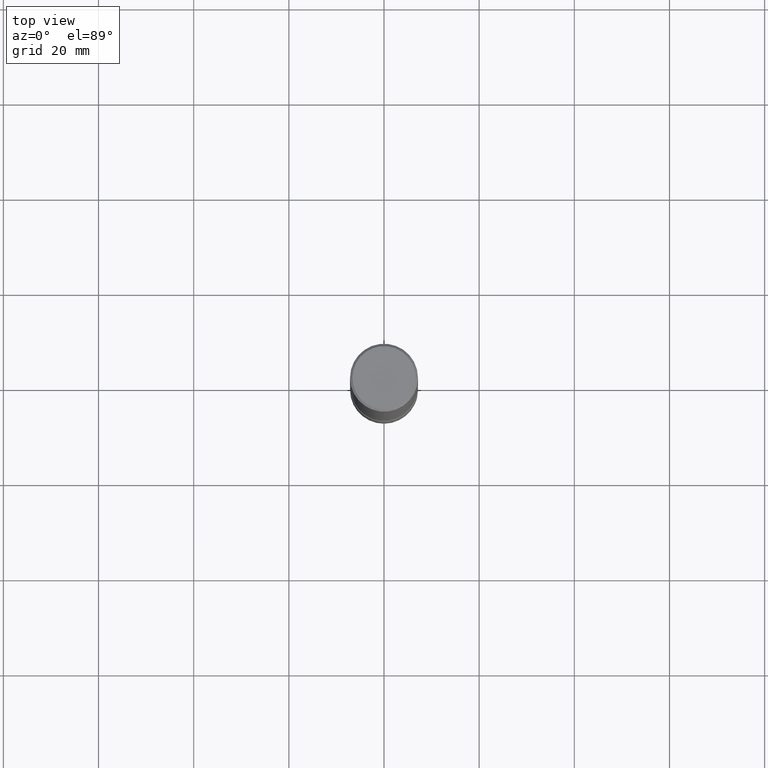
[diagram: clean part render]
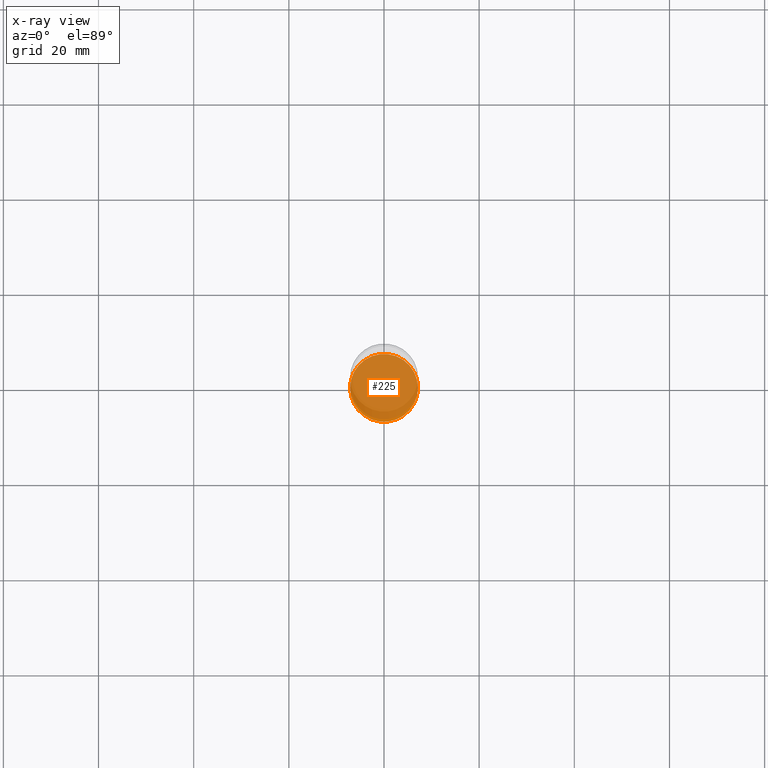
[diagram: x-ray — body ghosted, one internal face saturated and labeled with its STEP entity id]
A machine part, top view, then the same camera in x-ray: the body is ghosted and one INTERNAL B-rep face — a face not visible from any outside direction — is saturated and labeled: STEP entity #225.
In plain terms, the highlighted planar face has unit normal (0, -0, -1).
Its self-contained STEP definition (entity closure, byte-faithful):
#5 = EDGE_CURVE ( 'NONE', #310, #346, #274, .T. ) ;
#21 = AXIS2_PLACEMENT_3D ( 'NONE', #215, #528, #93 ) ;
#29 = CARTESIAN_POINT ( 'NONE',  ( 1.960466771760531918E-15, 0.2807499999999821250, -4.875000000000001776 ) ) ;
#34 = CARTESIAN_POINT ( 'NONE',  ( 1.192166043015254315E-28, -1.702097152686033664E-14, -4.875000000000000888 ) ) ;
#43 = CARTESIAN_POINT ( 'NONE',  ( 0.2807499999999991114, -1.898205379853449620E-14, -4.875000000000000888 ) ) ;
#93 = DIRECTION ( 'NONE',  ( -1.000000000000000000, 6.982962677686265133E-15, 0.000000000000000000 ) ) ;
#155 = DIRECTION ( 'NONE',  ( -1.000000000000000000, 6.982962677686265133E-15, 0.000000000000000000 ) ) ;
#175 = PLANE ( 'NONE',  #351 ) ;
#193 = DIRECTION ( 'NONE',  ( 2.445468806185136597E-29, -3.491481338843145583E-15, -1.000000000000000000 ) ) ;
#196 = AXIS2_PLACEMENT_3D ( 'NONE', #34, #193, #155 ) ;
#215 = CARTESIAN_POINT ( 'NONE',  ( 1.192166043015254315E-28, -1.702097152686033664E-14, -4.875000000000000888 ) ) ;
#225 = ADVANCED_FACE ( 'NONE', ( #494 ), #175, .T. ) ;
#271 = CARTESIAN_POINT ( 'NONE',  ( -0.2807499999999991114, -1.502425470764181182E-14, -4.875000000000000888 ) ) ;
#274 = CIRCLE ( 'NONE', #196, 0.2807499999999991114 ) ;
#283 = DIRECTION ( 'NONE',  ( 2.438088387897960049E-29, -3.491481338843145188E-15, -1.000000000000000000 ) ) ;
#310 = VERTEX_POINT ( 'NONE', #271 ) ;
#346 = VERTEX_POINT ( 'NONE', #43 ) ;
#351 = AXIS2_PLACEMENT_3D ( 'NONE', #29, #283, #410 ) ;
#400 = CIRCLE ( 'NONE', #21, 0.2807499999999991114 ) ;
#410 = DIRECTION ( 'NONE',  ( -1.000000000000000000, 6.982962677686265922E-15, -4.876176775795935793E-29 ) ) ;
#425 = EDGE_LOOP ( 'NONE', ( #444, #537 ) ) ;
#426 = EDGE_CURVE ( 'NONE', #346, #310, #400, .T. ) ;
#444 = ORIENTED_EDGE ( 'NONE', *, *, #426, .T. ) ;
#494 = FACE_OUTER_BOUND ( 'NONE', #425, .T. ) ;
#528 = DIRECTION ( 'NONE',  ( 2.445468806185136597E-29, -3.491481338843145583E-15, -1.000000000000000000 ) ) ;
#537 = ORIENTED_EDGE ( 'NONE', *, *, #5, .T. ) ;